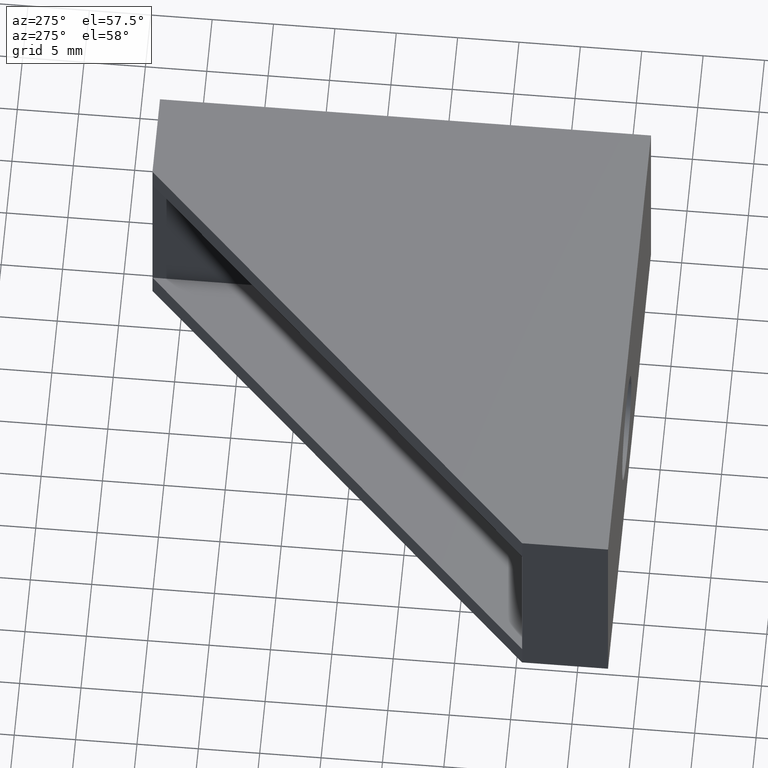
[diagram: clean part render]
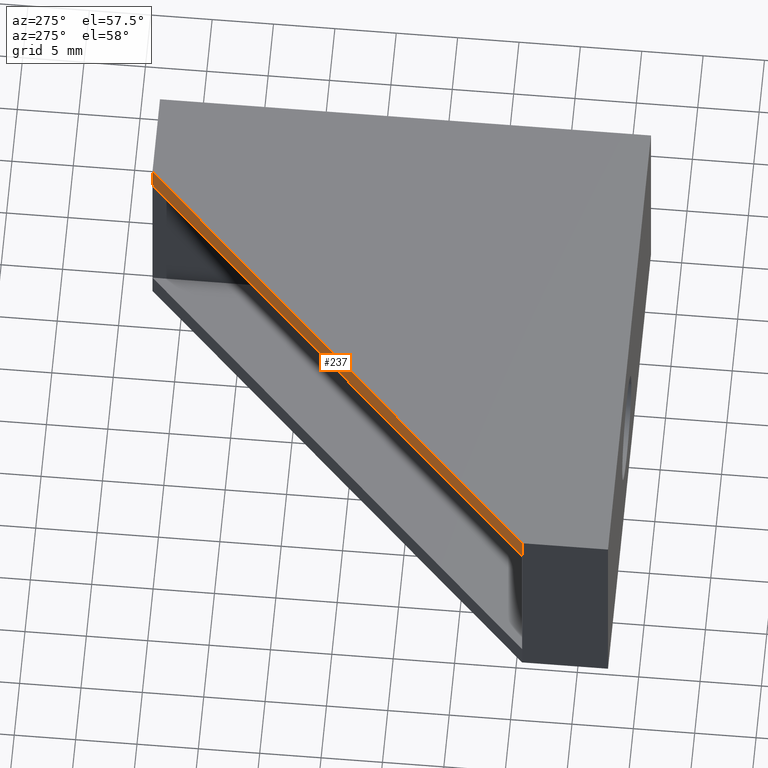
[diagram: same view with one face highlighted and labeled with its STEP entity id]
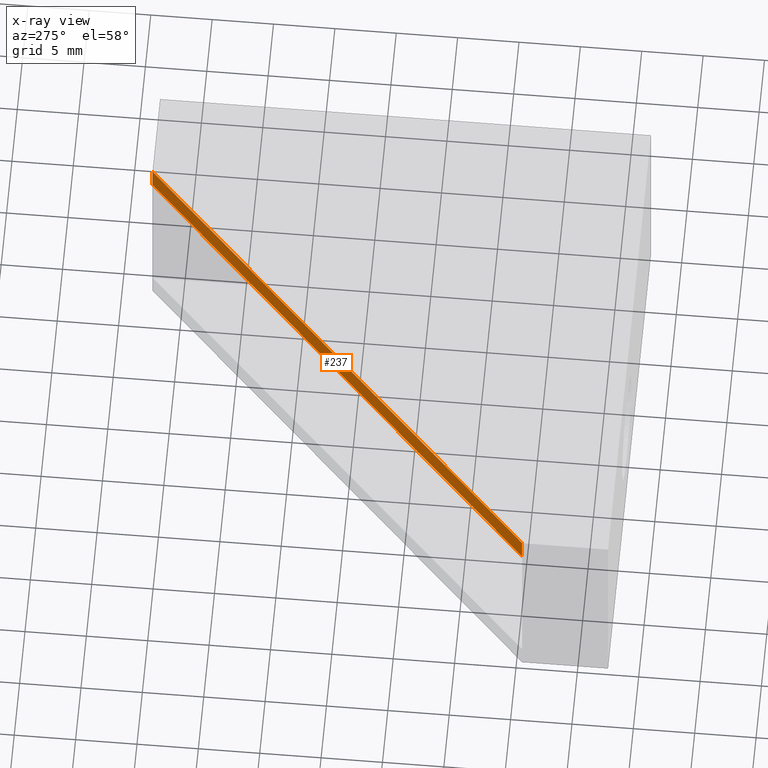
[diagram: x-ray of the same camera — body ghosted, the highlighted face saturated]
A machine part, auxiliary view. The second image highlights one B-rep face of the part: STEP entity #237.
The next image is the same camera in x-ray: the body ghosted, the highlighted face saturated — about 0% of this face is hidden behind the body in this view.
In plain terms, the highlighted planar face has unit normal (0.7071, -0.7071, 0).
Its self-contained STEP definition (entity closure, byte-faithful):
#29=FACE_OUTER_BOUND('',#45,.T.);
#45=EDGE_LOOP('',(#173,#174,#175,#176));
#68=LINE('',#356,#94);
#69=LINE('',#357,#95);
#70=LINE('',#358,#96);
#71=LINE('',#359,#97);
#94=VECTOR('',#288,46.6690475581256);
#95=VECTOR('',#289,2.);
#96=VECTOR('',#290,46.6690475581256);
#97=VECTOR('',#291,2.);
#116=VERTEX_POINT('',#340);
#118=VERTEX_POINT('',#346);
#121=VERTEX_POINT('',#354);
#122=VERTEX_POINT('',#355);
#142=EDGE_CURVE('',#121,#122,#68,.T.);
#143=EDGE_CURVE('',#116,#121,#69,.T.);
#144=EDGE_CURVE('',#116,#118,#70,.T.);
#145=EDGE_CURVE('',#118,#122,#71,.T.);
#173=ORIENTED_EDGE('',*,*,#142,.F.);
#174=ORIENTED_EDGE('',*,*,#143,.F.);
#175=ORIENTED_EDGE('',*,*,#144,.T.);
#176=ORIENTED_EDGE('',*,*,#145,.T.);
#225=PLANE('',#255);
#237=ADVANCED_FACE('',(#29),#225,.F.);
#255=AXIS2_PLACEMENT_3D('',#353,#286,#287);
#286=DIRECTION('center_axis',(0.707106781186548,-0.707106781186548,0.));
#287=DIRECTION('ref_axis',(0.,0.,-1.));
#288=DIRECTION('',(-0.707106781186548,-0.707106781186548,0.));
#289=DIRECTION('',(0.,0.,1.));
#290=DIRECTION('',(-0.707106781186548,-0.707106781186548,0.));
#291=DIRECTION('',(0.,0.,1.));
#340=CARTESIAN_POINT('',(-6.99999999997181,17.49999999993,7.00000000003592));
#346=CARTESIAN_POINT('',(-39.9999999998399,-15.4999999999382,7.00000000003592));
#353=CARTESIAN_POINT('Origin',(-6.99999999997181,17.49999999993,9.00000000003593));
#354=CARTESIAN_POINT('',(-6.99999999997181,17.49999999993,9.00000000003593));
#355=CARTESIAN_POINT('',(-39.9999999998399,-15.4999999999382,9.00000000003593));
#356=CARTESIAN_POINT('',(-6.99999999997181,17.49999999993,9.00000000003593));
#357=CARTESIAN_POINT('',(-6.99999999997181,17.49999999993,7.00000000003592));
#358=CARTESIAN_POINT('',(-6.99999999997181,17.49999999993,7.00000000003592));
#359=CARTESIAN_POINT('',(-39.9999999998399,-15.4999999999382,7.00000000003592));